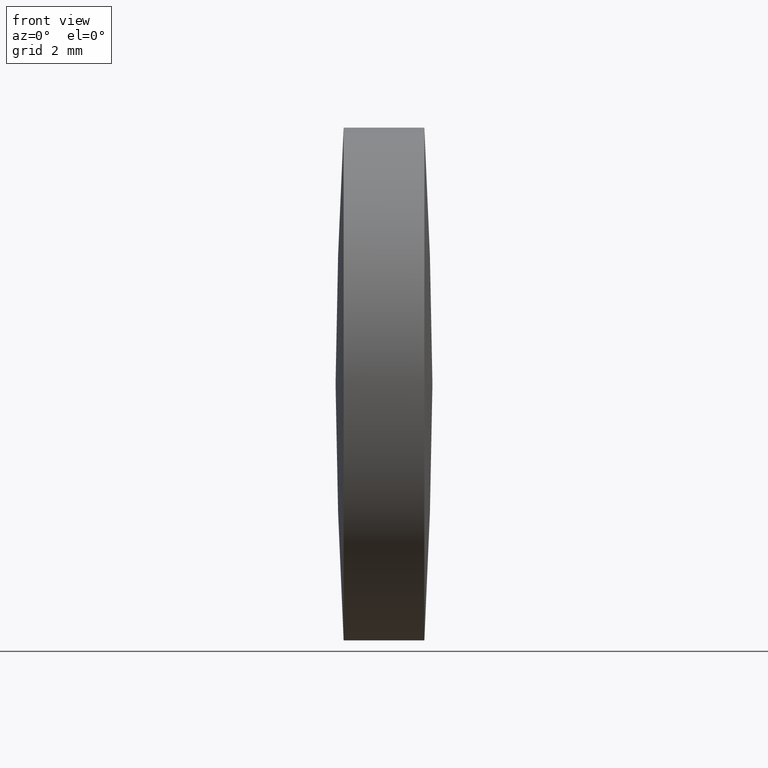
[diagram: clean part render]
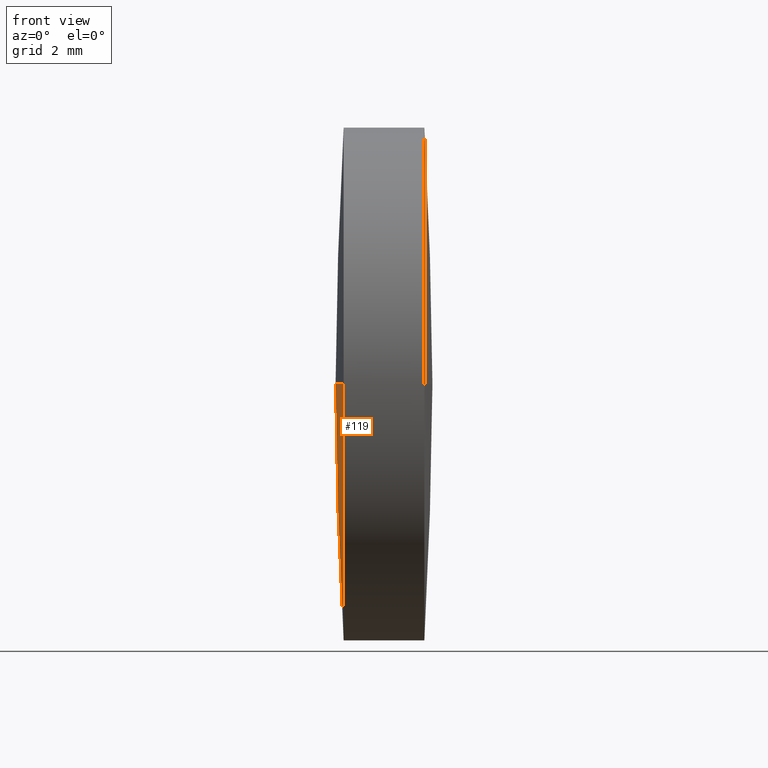
[diagram: same view with one face highlighted and labeled with its STEP entity id]
A machine part, front view. The second image highlights one B-rep face of the part: STEP entity #119.
In plain terms, the highlighted spherical surface has radius 100.93 mm.
Its self-contained STEP definition (entity closure, byte-faithful):
#10 = FACE_OUTER_BOUND ( 'NONE', #33, .T. ) ;
#14 = VERTEX_POINT ( 'NONE', #288 ) ;
#33 = EDGE_LOOP ( 'NONE', ( #79, #96, #231, #329 ) ) ;
#48 = EDGE_CURVE ( 'NONE', #14, #333, #330, .T. ) ;
#57 = DIRECTION ( 'NONE',  ( 0.0000000000000000000, 1.000000000000000000, 0.0000000000000000000 ) ) ;
#60 = EDGE_CURVE ( 'NONE', #140, #333, #198, .T. ) ;
#71 = CARTESIAN_POINT ( 'NONE',  ( 42.22906260161698800, 17.95805651159242400, -7.776507174585767100E-016 ) ) ;
#79 = ORIENTED_EDGE ( 'NONE', *, *, #175, .T. ) ;
#82 = AXIS2_PLACEMENT_3D ( 'NONE', #132, #191, #57 ) ;
#94 = CARTESIAN_POINT ( 'NONE',  ( 142.9593195785108400, 24.30805651159248600, 0.0000000000000000000 ) ) ;
#96 = ORIENTED_EDGE ( 'NONE', *, *, #101, .T. ) ;
#98 = DIRECTION ( 'NONE',  ( -0.0000000000000000000, 0.0000000000000000000, 1.000000000000000000 ) ) ;
#99 = CARTESIAN_POINT ( 'NONE',  ( 42.22906260161698100, 24.30805651159239000, 0.0000000000000000000 ) ) ;
#101 = EDGE_CURVE ( 'NONE', #176, #140, #128, .T. ) ;
#113 = CIRCLE ( 'NONE', #214, 6.349999999999997900 ) ;
#119 = ADVANCED_FACE ( 'NONE', ( #10 ), #289, .T. ) ;
#125 = DIRECTION ( 'NONE',  ( 0.0000000000000000000, 1.224646799147353200E-016, -1.000000000000000000 ) ) ;
#128 = CIRCLE ( 'NONE', #242, 6.349999999999997900 ) ;
#130 = CARTESIAN_POINT ( 'NONE',  ( 42.02911017304555900, 24.30805651159249300, 0.0000000000000000000 ) ) ;
#132 = CARTESIAN_POINT ( 'NONE',  ( 142.9593195785108400, 24.30805651159248600, 0.0000000000000000000 ) ) ;
#140 = VERTEX_POINT ( 'NONE', #71 ) ;
#153 = DIRECTION ( 'NONE',  ( 1.000000000000000000, 0.0000000000000000000, 0.0000000000000000000 ) ) ;
#175 = EDGE_CURVE ( 'NONE', #14, #176, #113, .T. ) ;
#176 = VERTEX_POINT ( 'NONE', #313 ) ;
#191 = DIRECTION ( 'NONE',  ( -0.0000000000000000000, 0.0000000000000000000, -1.000000000000000000 ) ) ;
#198 = CIRCLE ( 'NONE', #226, 100.9302094054652900 ) ;
#214 = AXIS2_PLACEMENT_3D ( 'NONE', #99, #219, #336 ) ;
#219 = DIRECTION ( 'NONE',  ( -1.000000000000000000, -0.0000000000000000000, -0.0000000000000000000 ) ) ;
#224 = DIRECTION ( 'NONE',  ( -1.000000000000000000, -0.0000000000000000000, -0.0000000000000000000 ) ) ;
#226 = AXIS2_PLACEMENT_3D ( 'NONE', #94, #125, #337 ) ;
#231 = ORIENTED_EDGE ( 'NONE', *, *, #60, .T. ) ;
#242 = AXIS2_PLACEMENT_3D ( 'NONE', #341, #224, #343 ) ;
#266 = CARTESIAN_POINT ( 'NONE',  ( 142.9593195785108400, 24.30805651159248600, 0.0000000000000000000 ) ) ;
#285 = AXIS2_PLACEMENT_3D ( 'NONE', #266, #98, #153 ) ;
#288 = CARTESIAN_POINT ( 'NONE',  ( 42.22906260161698800, 30.65805651159245200, 0.0000000000000000000 ) ) ;
#289 = SPHERICAL_SURFACE ( 'NONE', #82, 100.9302094054652900 ) ;
#313 = CARTESIAN_POINT ( 'NONE',  ( 42.22906260161698100, 24.30805651159239000, -6.349999999999997900 ) ) ;
#329 = ORIENTED_EDGE ( 'NONE', *, *, #48, .F. ) ;
#330 = CIRCLE ( 'NONE', #285, 100.9302094054652900 ) ;
#333 = VERTEX_POINT ( 'NONE', #130 ) ;
#336 = DIRECTION ( 'NONE',  ( 0.0000000000000000000, 0.0000000000000000000, 1.000000000000000000 ) ) ;
#337 = DIRECTION ( 'NONE',  ( 0.0000000000000000000, 1.000000000000000000, 1.224646799147353200E-016 ) ) ;
#341 = CARTESIAN_POINT ( 'NONE',  ( 42.22906260161698100, 24.30805651159239000, 0.0000000000000000000 ) ) ;
#343 = DIRECTION ( 'NONE',  ( 0.0000000000000000000, 0.0000000000000000000, 1.000000000000000000 ) ) ;